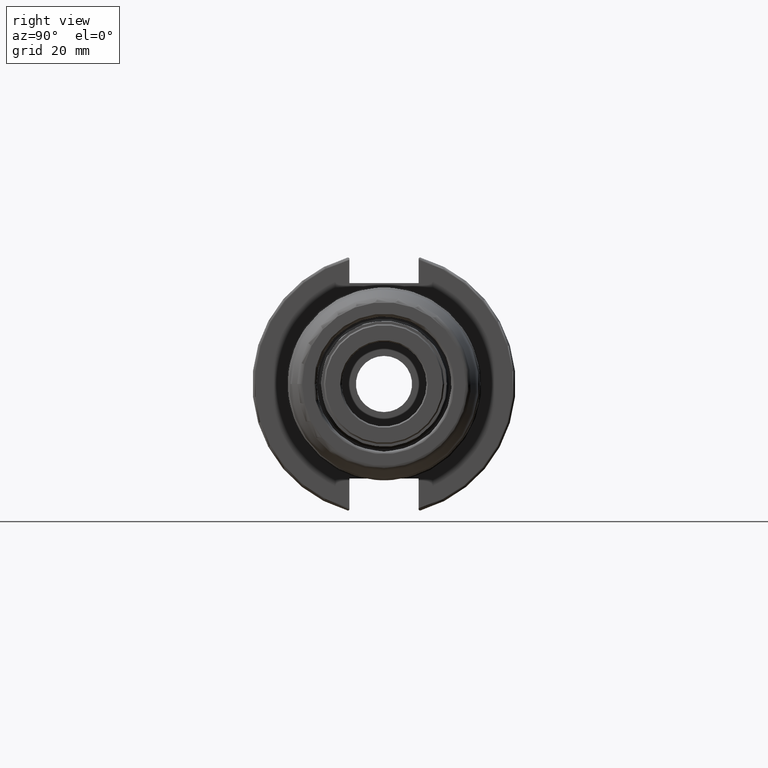
[diagram: clean part render]
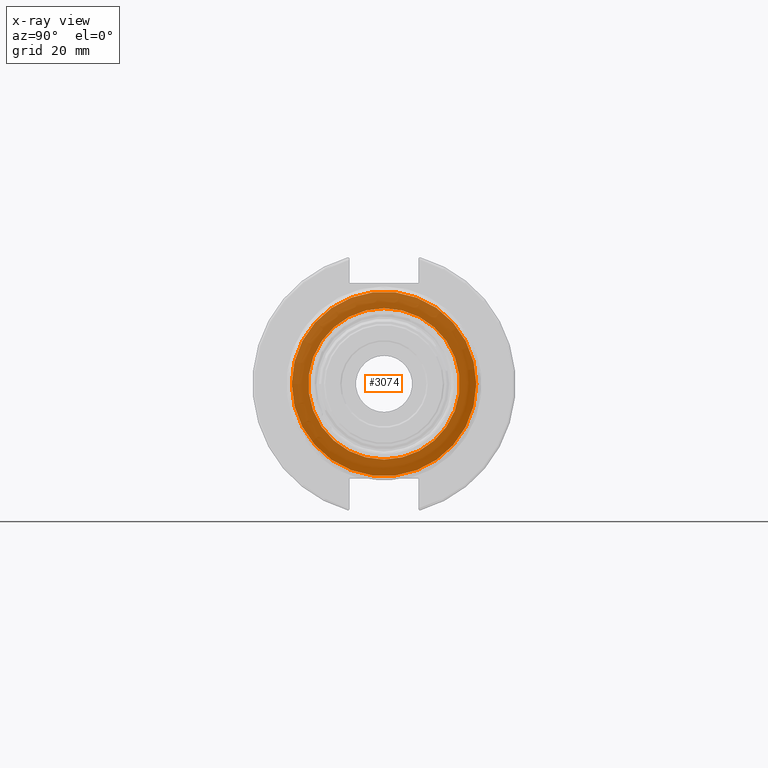
[diagram: x-ray — body ghosted, one internal face saturated and labeled with its STEP entity id]
A machine part, right view, then the same camera in x-ray: the body is ghosted and one INTERNAL B-rep face — a face not visible from any outside direction — is saturated and labeled: STEP entity #3074.
In plain terms, the highlighted planar face has unit normal (-1, 0, 0).
Its self-contained STEP definition (entity closure, byte-faithful):
#107=FACE_BOUND('',#1022,.T.);
#185=PLANE('',#3426);
#832=FACE_OUTER_BOUND('',#1021,.T.);
#1021=EDGE_LOOP('',(#2790));
#1022=EDGE_LOOP('',(#2791));
#1155=CIRCLE('',#3423,28.3);
#1158=CIRCLE('',#3427,34.5);
#1495=VERTEX_POINT('',#6399);
#1498=VERTEX_POINT('',#6407);
#1930=EDGE_CURVE('',#1495,#1495,#1155,.T.);
#1934=EDGE_CURVE('',#1498,#1498,#1158,.T.);
#2790=ORIENTED_EDGE('',*,*,#1934,.F.);
#2791=ORIENTED_EDGE('',*,*,#1930,.F.);
#3074=ADVANCED_FACE('',(#832,#107),#185,.T.);
#3423=AXIS2_PLACEMENT_3D('',#6400,#4202,#4203);
#3426=AXIS2_PLACEMENT_3D('',#6406,#4209,#4210);
#3427=AXIS2_PLACEMENT_3D('',#6408,#4211,#4212);
#4202=DIRECTION('center_axis',(-1.,0.,0.));
#4203=DIRECTION('ref_axis',(0.,-1.,0.));
#4209=DIRECTION('center_axis',(-1.,0.,0.));
#4210=DIRECTION('ref_axis',(0.,0.,1.));
#4211=DIRECTION('center_axis',(1.,0.,0.));
#4212=DIRECTION('ref_axis',(0.,-1.,1.83697019872103E-16));
#6399=CARTESIAN_POINT('',(0.,28.3,-3.46575044158701E-15));
#6400=CARTESIAN_POINT('Origin',(0.,0.,0.));
#6406=CARTESIAN_POINT('Origin',(0.,35.5,0.));
#6407=CARTESIAN_POINT('',(0.,-4.22503145705837E-15,34.5));
#6408=CARTESIAN_POINT('Origin',(0.,0.,0.));